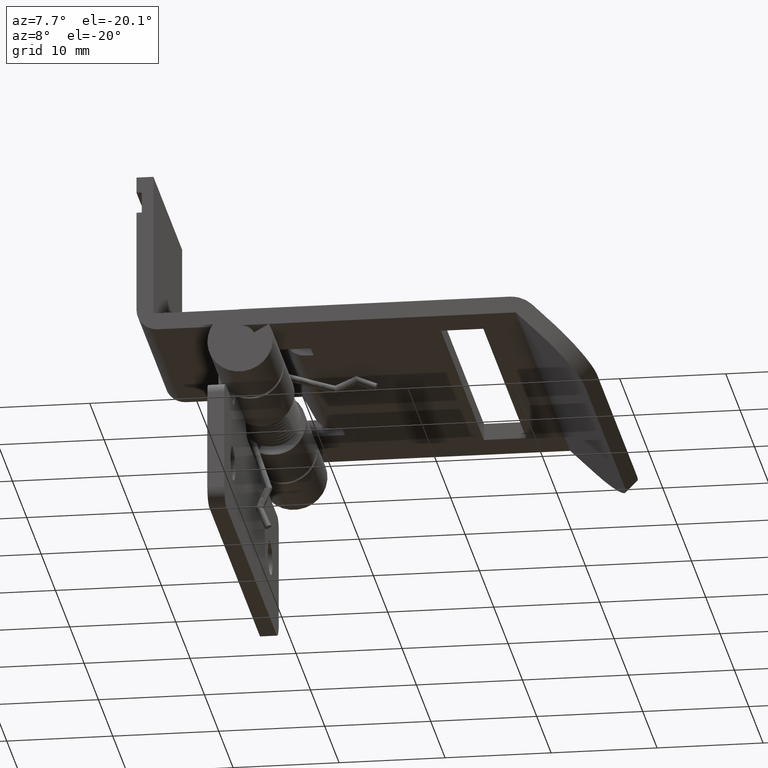
[diagram: clean part render]
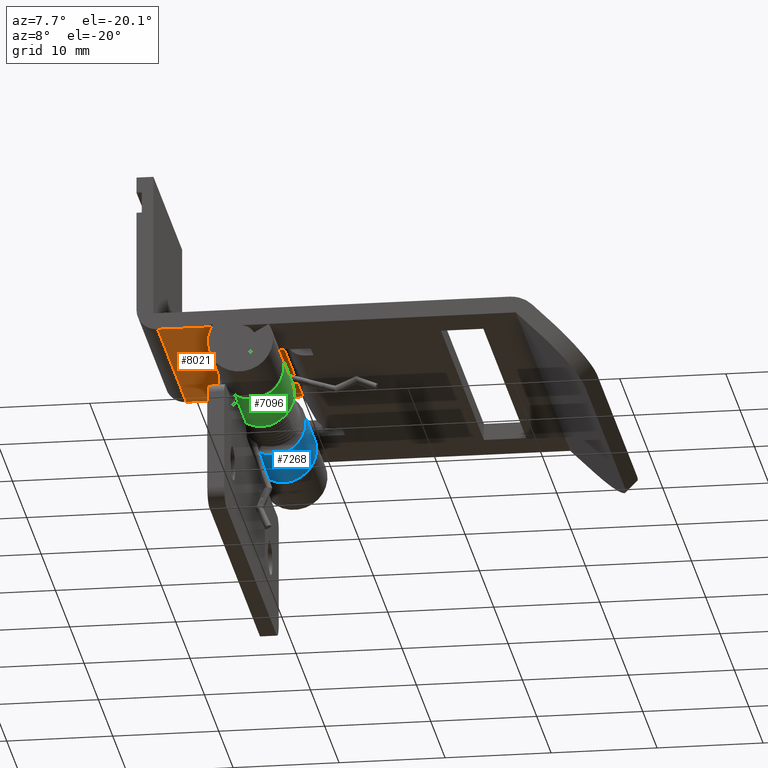
[diagram: same view with three faces highlighted in distinct colors, each labeled with its STEP entity id]
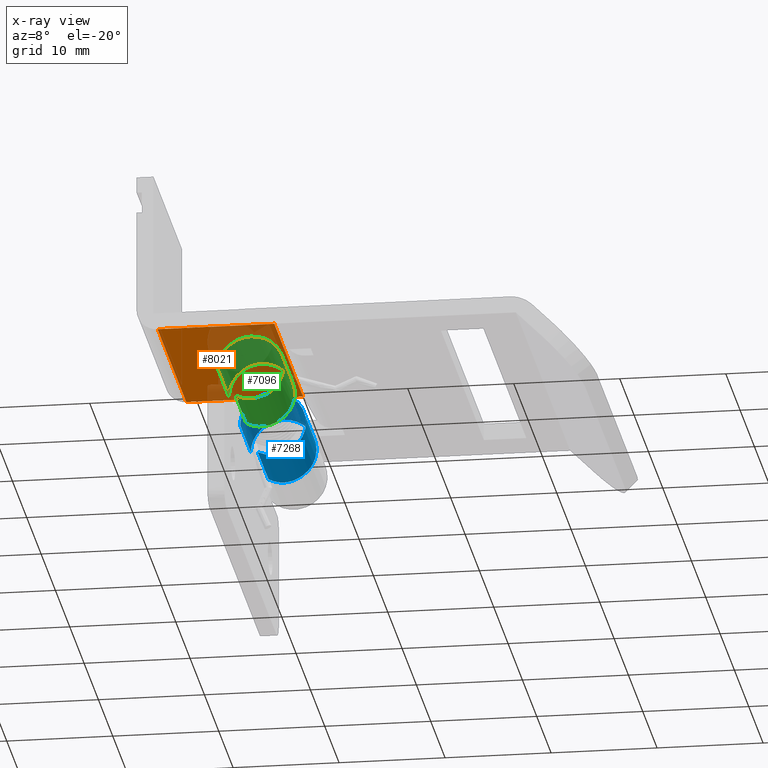
[diagram: x-ray of the same camera — body ghosted, the three highlighted faces saturated]
A machine part, auxiliary view with three faces highlighted in distinct colors.
The next image is the same camera in x-ray (body ghosted, the three faces saturated) — at least one of them is partly hidden behind the body in this view.
Their STEP definitions:

[orange] entity #8021 — the highlighted face is a freeform B-spline surface patch.
#7612=CARTESIAN_POINT('',(2.000382000000000,-10.0,4.800004000000000));
#7613=VERTEX_POINT('',#7612);
#7719=CARTESIAN_POINT('',(-8.999999965093419,-10.0,4.800004000000000));
#7720=VERTEX_POINT('',#7719);
#7736=CARTESIAN_POINT('',(-8.999999965093419,-10.0,4.800004000000000));
#7737=CARTESIAN_POINT('',(2.000382000000000,-10.0,4.800004000000000));
#7738=QUASI_UNIFORM_CURVE('',1,(#7736,#7737),.UNSPECIFIED.,.F.,.U.);
#7739=EDGE_CURVE('',#7720,#7613,#7738,.T.);
#7757=CARTESIAN_POINT('',(2.000382000000000,10.0,4.800004000000000));
#7758=VERTEX_POINT('',#7757);
#7764=CARTESIAN_POINT('',(-8.999999965093419,10.0,4.800004000000000));
#7765=VERTEX_POINT('',#7764);
#7766=CARTESIAN_POINT('',(-8.999999965093419,10.0,4.800004000000000));
#7767=CARTESIAN_POINT('',(2.000382000000000,10.0,4.800004000000000));
#7768=QUASI_UNIFORM_CURVE('',1,(#7766,#7767),.UNSPECIFIED.,.F.,.U.);
#7769=EDGE_CURVE('',#7765,#7758,#7768,.T.);
#7998=CARTESIAN_POINT('',(2.000382000000000,10.0,4.800004000000000));
#7999=CARTESIAN_POINT('',(2.000382000000000,-10.0,4.800004000000000));
#8000=QUASI_UNIFORM_CURVE('',1,(#7998,#7999),.UNSPECIFIED.,.F.,.U.);
#8001=EDGE_CURVE('',#7758,#7613,#8000,.T.);
#8006=CARTESIAN_POINT('',(2.549851057835541,-10.998999961236120,4.800004000000000));
#8007=CARTESIAN_POINT('',(-9.549469317982197,-10.998999961236120,4.800004000000000));
#8008=CARTESIAN_POINT('',(2.549851057835541,10.999000497677921,4.800004000000000));
#8009=CARTESIAN_POINT('',(-9.549469317982197,10.999000497677921,4.800004000000000));
#8010=B_SPLINE_SURFACE_WITH_KNOTS('',1,1,((#8006,#8008),(#8007,#8009)),.UNSPECIFIED.,.F.,.F.,.U.,(2,2),(2,2),(0.0,12.099320375817740),(0.0,21.998000458914039),.UNSPECIFIED.);
#8011=ORIENTED_EDGE('',*,*,#7739,.F.);
#8012=CARTESIAN_POINT('',(-8.999999965093419,10.0,4.800004000000000));
#8013=CARTESIAN_POINT('',(-8.999999965093419,-10.0,4.800004000000000));
#8014=QUASI_UNIFORM_CURVE('',1,(#8012,#8013),.UNSPECIFIED.,.F.,.U.);
#8015=EDGE_CURVE('',#7765,#7720,#8014,.T.);
#8016=ORIENTED_EDGE('',*,*,#8015,.F.);
#8017=ORIENTED_EDGE('',*,*,#7769,.T.);
#8018=ORIENTED_EDGE('',*,*,#8001,.T.);
#8019=EDGE_LOOP('',(#8011,#8016,#8017,#8018));
#8020=FACE_OUTER_BOUND('',#8019,.T.);
#8021=ADVANCED_FACE('',(#8020),#8010,.T.);

[blue] entity #7268 — the highlighted face is a freeform B-spline surface patch.
#5881=CARTESIAN_POINT('',(-1.452424263571842,3.980885261083645,-2.738702416210515));
#5882=VERTEX_POINT('',#5881);
#5883=CARTESIAN_POINT('',(1.833038247998800,4.0,-2.499999764380550));
#5884=VERTEX_POINT('',#5883);
#5885=CARTESIAN_POINT('',(-1.452424263571842,3.980885261083645,-2.738702416210515));
#5886=CARTESIAN_POINT('',(-1.323508086185470,3.969865017760054,-2.807070873349324));
#5887=CARTESIAN_POINT('',(-1.191582152785270,3.955693140812825,-2.865448195245419));
#5888=CARTESIAN_POINT('',(-0.921487070807254,3.927546590670929,-2.963363394196656));
#5889=CARTESIAN_POINT('',(-0.783317970228894,3.913549917411709,-3.002895257463015));
#5890=CARTESIAN_POINT('',(-0.570956094603653,3.896473618098266,-3.047830435631229));
#5891=CARTESIAN_POINT('',(-0.499065714444551,3.891412319923849,-3.060436942593606));
#5892=CARTESIAN_POINT('',(-0.354648134963003,3.883156353013619,-3.080513835991531));
#5893=CARTESIAN_POINT('',(-0.282494087150358,3.879978755377942,-3.087951650832421));
#5894=CARTESIAN_POINT('',(-0.066195018713844,3.873647781703114,-3.102665585433724));
#5895=CARTESIAN_POINT('',(0.077786987210541,3.873778113968319,-3.102378113373354));
#5896=CARTESIAN_POINT('',(0.293436840445546,3.880416188899351,-3.086926375192825));
#5897=CARTESIAN_POINT('',(0.365266250319616,3.883682051494089,-3.079263336782807));
#5898=CARTESIAN_POINT('',(0.508817524512710,3.892063553192834,-3.058821167136485));
#5899=CARTESIAN_POINT('',(0.580830857823335,3.897205000008173,-3.045971805467888));
#5900=CARTESIAN_POINT('',(0.794001569455287,3.914548812561249,-3.000119740198659));
#5901=CARTESIAN_POINT('',(0.932437358494705,3.928671372290487,-2.959947652269663));
#5902=CARTESIAN_POINT('',(1.202608361771241,3.956859970083573,-2.860850052513290));
#5903=CARTESIAN_POINT('',(1.334342962015449,3.970947930887822,-2.801928660983762));
#5904=CARTESIAN_POINT('',(1.527119694891843,3.987182273388437,-2.698748757596049));
#5905=CARTESIAN_POINT('',(1.590251196189735,3.991731743156326,-2.662037662052547));
#5906=CARTESIAN_POINT('',(1.713643038598969,3.998134818219994,-2.584331867645701));
#5907=CARTESIAN_POINT('',(1.774006426989530,4.000000006798879,-2.543282771047470));
#5908=CARTESIAN_POINT('',(1.833038247998800,4.0,-2.499999764380550));
#5909=B_SPLINE_CURVE_WITH_KNOTS('',3,(#5885,#5886,#5887,#5888,#5889,#5890,#5891,#5892,#5893,#5894,#5895,#5896,#5897,#5898,#5899,#5900,#5901,#5902,#5903,#5904,#5905,#5906,#5907,#5908),.UNSPECIFIED.,.F.,.U.,(4,2,2,2,2,2,2,2,2,2,2,4),(0.0,0.125000000000000,0.250000000000000,0.312500000000000,0.375000000000000,0.500000000000000,0.562500000000000,0.625000000000000,0.750000000000000,0.875000000000000,0.937500000000000,1.0),.UNSPECIFIED.);
#5910=EDGE_CURVE('',#5882,#5884,#5909,.T.);
#6016=CARTESIAN_POINT('',(-3.100005999999895,4.0,0.000001831901504));
#6017=VERTEX_POINT('',#6016);
#6018=CARTESIAN_POINT('',(1.833038247998800,4.0,-2.499999764380550));
#6019=CARTESIAN_POINT('',(3.854498102768994,4.000000000000000,-1.017835418526496));
#6020=CARTESIAN_POINT('',(2.828325186497078,4.0,1.269101449530536));
#6021=CARTESIAN_POINT('',(1.802152270225161,4.000000000000000,3.556038317587568));
#6022=CARTESIAN_POINT('',(-0.648926864887637,4.0,3.031326810201635));
#6023=CARTESIAN_POINT('',(-3.100006000000436,4.000000000000000,2.506615302815701));
#6024=CARTESIAN_POINT('',(-3.100005999999895,4.0,0.000001831901504));
#6032=(BOUNDED_CURVE()B_SPLINE_CURVE(2,(#6018,#6019,#6020,#6021,#6022,#6023,#6024),.UNSPECIFIED.,.F.,.U.)B_SPLINE_CURVE_WITH_KNOTS((3,2,2,3),(0.0,0.333333333333333,0.666666666666667,1.0),.UNSPECIFIED.)CURVE()GEOMETRIC_REPRESENTATION_ITEM()RATIONAL_B_SPLINE_CURVE((1.0,0.777602353899947,1.0,0.777602353899947,1.0,0.777602353899947,1.0))REPRESENTATION_ITEM(''));
#6033=EDGE_CURVE('',#5884,#6017,#6032,.T.);
#6477=CARTESIAN_POINT('',(1.833037926647575,11.400001999999960,-2.500000000000000));
#6478=VERTEX_POINT('',#6477);
#6479=CARTESIAN_POINT('',(-1.452424263571842,11.419116738916260,-2.738702416210515));
#6480=VERTEX_POINT('',#6479);
#6481=CARTESIAN_POINT('',(1.833037926647575,11.400001999999960,-2.500000000000000));
#6482=CARTESIAN_POINT('',(1.714879738275285,11.400001999999960,-2.586635312769204));
#6483=CARTESIAN_POINT('',(1.592348386267686,11.407367921044910,-2.663680268019367));
#6484=CARTESIAN_POINT('',(1.338544330604485,11.428659780172881,-2.799832946740748));
#6485=CARTESIAN_POINT('',(1.207272818588075,11.442650292053580,-2.858933230642906));
#6486=CARTESIAN_POINT('',(1.003392304990018,11.463929888833150,-2.934020342504017));
#6487=CARTESIAN_POINT('',(0.934088047546289,11.471095148435831,-2.956813681602687));
#6488=CARTESIAN_POINT('',(0.795039927569749,11.484639687603149,-2.997195187821717));
#6489=CARTESIAN_POINT('',(0.725088995664262,11.491041272386321,-3.014872773820613));
#6490=CARTESIAN_POINT('',(0.513925608322558,11.508276827787840,-3.060498229924645));
#6491=CARTESIAN_POINT('',(0.371405041833473,11.517077096996699,-3.081078158795031));
#6492=CARTESIAN_POINT('',(0.154832821525667,11.523903608545440,-3.096981151737634));
#6493=CARTESIAN_POINT('',(0.082176195364206,11.525132323903820,-3.099777815407826));
#6494=CARTESIAN_POINT('',(-0.064104951345756,11.525318403311140,-3.100204184506215));
#6495=CARTESIAN_POINT('',(-0.136931349976710,11.524271957206290,-3.097825363683437));
#6496=CARTESIAN_POINT('',(-0.353730635963261,11.517961574907700,-3.083161665273361));
#6497=CARTESIAN_POINT('',(-0.496370264342134,11.509464863065579,-3.063390544431493));
#6498=CARTESIAN_POINT('',(-0.707671267884481,11.492564025819080,-3.019007666148261));
#6499=CARTESIAN_POINT('',(-0.777661232333774,11.486254038297981,-3.001749139555761));
#6500=CARTESIAN_POINT('',(-0.916774907531749,11.472842843276631,-2.962225312636815));
#6501=CARTESIAN_POINT('',(-0.986093971158208,11.465720787376510,-2.939884540613980));
#6502=CARTESIAN_POINT('',(-1.191010381353062,11.444372255557630,-2.865767782777792));
#6503=CARTESIAN_POINT('',(-1.323609490997961,11.430128313772240,-2.807017095067054));
#6504=CARTESIAN_POINT('',(-1.452424263571842,11.419116738916260,-2.738702416210515));
#6505=B_SPLINE_CURVE_WITH_KNOTS('',3,(#6481,#6482,#6483,#6484,#6485,#6486,#6487,#6488,#6489,#6490,#6491,#6492,#6493,#6494,#6495,#6496,#6497,#6498,#6499,#6500,#6501,#6502,#6503,#6504),.UNSPECIFIED.,.F.,.U.,(4,2,2,2,2,2,2,2,2,2,2,4),(0.0,0.125000000000000,0.250000000000000,0.312500000000000,0.375000000000000,0.500000000000000,0.562500000000000,0.625000000000000,0.750000000000000,0.812500000000000,0.875000000000000,1.0),.UNSPECIFIED.);
#6506=EDGE_CURVE('',#6478,#6480,#6505,.T.);
#6607=CARTESIAN_POINT('',(-3.100005999999895,11.400001999999960,0.000001831901504));
#6608=VERTEX_POINT('',#6607);
#6614=CARTESIAN_POINT('',(-0.010215562276716,11.400002000000020,3.099990999999790));
#6615=VERTEX_POINT('',#6614);
#6616=CARTESIAN_POINT('',(-0.010215562276715,11.400002000000020,3.099990999999787));
#6617=CARTESIAN_POINT('',(-3.100006000000435,11.400002000000018,3.089809046151786));
#6618=CARTESIAN_POINT('',(-3.100005999999895,11.400001999999960,0.000001831901504));
#6626=(BOUNDED_CURVE()B_SPLINE_CURVE(2,(#6616,#6617,#6618),.UNSPECIFIED.,.F.,.U.)CURVE()GEOMETRIC_REPRESENTATION_ITEM()QUASI_UNIFORM_CURVE()RATIONAL_B_SPLINE_CURVE((1.0,0.708270900253522,1.0))REPRESENTATION_ITEM(''));
#6627=EDGE_CURVE('',#6615,#6608,#6626,.T.);
#6629=CARTESIAN_POINT('',(0.010215562276917,11.400002000000020,3.099990999999790));
#6630=VERTEX_POINT('',#6629);
#6631=CARTESIAN_POINT('',(0.010215562276908,11.400002000000020,3.099990999999787));
#6632=CARTESIAN_POINT('',(0.006810374850668,11.400038495805230,3.099999415950914));
#6633=CARTESIAN_POINT('',(-1.811965E-012,11.400111487415650,3.100016247853167));
#6634=CARTESIAN_POINT('',(-0.006810374854292,11.400038495805230,3.099999415950906));
#6635=CARTESIAN_POINT('',(-0.010215562276716,11.400002000000020,3.099990999999790));
#6636=B_SPLINE_CURVE_WITH_KNOTS('',3,(#6631,#6632,#6633,#6634,#6635),.UNSPECIFIED.,.F.,.U.,(4,1,4),(0.0,0.500000000000067,1.000000000000000),.UNSPECIFIED.);
#6637=EDGE_CURVE('',#6630,#6615,#6636,.T.);
#6639=CARTESIAN_POINT('',(1.833037926647575,11.400001999999960,-2.500000000000000));
#6640=CARTESIAN_POINT('',(3.642102073125281,11.400002000000020,-1.173567695064697));
#6641=CARTESIAN_POINT('',(2.947773847520923,11.400002000000020,0.959515533685697));
#6642=CARTESIAN_POINT('',(2.253445621916565,11.400002000000020,3.092598762436089));
#6643=CARTESIAN_POINT('',(0.010215562276917,11.400002000000020,3.099990999999787));
#6651=(BOUNDED_CURVE()B_SPLINE_CURVE(2,(#6639,#6640,#6641,#6642,#6643),.UNSPECIFIED.,.F.,.U.)B_SPLINE_CURVE_WITH_KNOTS((3,2,3),(0.0,0.500000000000000,1.0),.UNSPECIFIED.)CURVE()GEOMETRIC_REPRESENTATION_ITEM()RATIONAL_B_SPLINE_CURVE((1.0,0.810139426690261,1.0,0.810139426690261,1.0))REPRESENTATION_ITEM(''));
#6652=EDGE_CURVE('',#6478,#6630,#6651,.T.);
#7104=CARTESIAN_POINT('',(-3.100005999999895,11.400001999999960,0.000001831901504));
#7105=CARTESIAN_POINT('',(-3.100005999999895,4.0,0.000001831901504));
#7106=QUASI_UNIFORM_CURVE('',1,(#7104,#7105),.UNSPECIFIED.,.F.,.U.);
#7107=EDGE_CURVE('',#6608,#6017,#7106,.T.);
#7228=CARTESIAN_POINT('',(-1.452424263571842,11.419116738916260,-2.738702416210515));
#7229=CARTESIAN_POINT('',(-1.452424263571842,3.980885261083645,-2.738702416210515));
#7230=QUASI_UNIFORM_CURVE('',1,(#7228,#7229),.UNSPECIFIED.,.F.,.U.);
#7231=EDGE_CURVE('',#6480,#5882,#7230,.T.);
#7236=CARTESIAN_POINT('',(-3.098943705368611,11.716299596806730,-0.081146864914611));
#7237=CARTESIAN_POINT('',(-3.098943705368611,3.678939345337079,-0.081146864914611));
#7238=CARTESIAN_POINT('',(-3.196803569136391,11.716299596806733,3.655970559393460));
#7239=CARTESIAN_POINT('',(-3.196803569136391,3.678939345337079,3.655970559393460));
#7240=CARTESIAN_POINT('',(0.493852246850709,11.716299596806730,3.060418005940570));
#7241=CARTESIAN_POINT('',(0.493852246850709,3.678939345337079,3.060418005940570));
#7242=CARTESIAN_POINT('',(4.184508062837808,11.716299596806733,2.464865452487679));
#7243=CARTESIAN_POINT('',(4.184508062837808,3.678939345337079,2.464865452487679));
#7244=CARTESIAN_POINT('',(2.916124618116266,11.716299596806730,-1.051784463719502));
#7245=CARTESIAN_POINT('',(2.916124618116266,3.678939345337079,-1.051784463719502));
#7246=CARTESIAN_POINT('',(1.647741173394725,11.716299596806733,-4.568434379926682));
#7247=CARTESIAN_POINT('',(1.647741173394725,3.678939345337079,-4.568434379926682));
#7248=CARTESIAN_POINT('',(-1.573371970408527,11.716299596806730,-2.671053735242652));
#7249=CARTESIAN_POINT('',(-1.573371970408527,3.678939345337079,-2.671053735242652));
#7257=(BOUNDED_SURFACE()B_SPLINE_SURFACE(1,2,((#7236,#7238,#7240,#7242,#7244,#7246,#7248),(#7237,#7239,#7241,#7243,#7245,#7247,#7249)),.UNSPECIFIED.,.F.,.F.,.U.)B_SPLINE_SURFACE_WITH_KNOTS((2,2),(3,2,2,3),(0.0,8.037360251469654),(0.0,5.826199339059780,11.652398678119560,17.478598017179340),.UNSPECIFIED.)GEOMETRIC_REPRESENTATION_ITEM()RATIONAL_B_SPLINE_SURFACE(((1.0,0.638320090924328,1.0,0.638320090924328,1.0,0.638320090924328,1.0),(1.0,0.638320090924328,1.0,0.638320090924328,1.0,0.638320090924328,1.0)))REPRESENTATION_ITEM('')SURFACE());
#7258=ORIENTED_EDGE('',*,*,#7107,.T.);
#7259=ORIENTED_EDGE('',*,*,#6033,.F.);
#7260=ORIENTED_EDGE('',*,*,#5910,.F.);
#7261=ORIENTED_EDGE('',*,*,#7231,.F.);
#7262=ORIENTED_EDGE('',*,*,#6506,.F.);
#7263=ORIENTED_EDGE('',*,*,#6652,.T.);
#7264=ORIENTED_EDGE('',*,*,#6637,.T.);
#7265=ORIENTED_EDGE('',*,*,#6627,.T.);
#7266=EDGE_LOOP('',(#7258,#7259,#7260,#7261,#7262,#7263,#7264,#7265));
#7267=FACE_OUTER_BOUND('',#7266,.T.);
#7268=ADVANCED_FACE('',(#7267),#7257,.T.);

[green] entity #7096 — the highlighted face is a freeform B-spline surface patch.
#5813=CARTESIAN_POINT('',(1.833034332300800,-4.0,-2.500002635423755));
#5814=VERTEX_POINT('',#5813);
#5815=CARTESIAN_POINT('',(-1.452424263571842,-3.980885651868495,-2.738702416210515));
#5816=VERTEX_POINT('',#5815);
#5817=CARTESIAN_POINT('',(1.833034332300800,-4.0,-2.500002635423755));
#5818=CARTESIAN_POINT('',(1.714876175051576,-4.000000000002346,-2.586637664164622));
#5819=CARTESIAN_POINT('',(1.592344877451368,-3.992634114367641,-2.663682355591306));
#5820=CARTESIAN_POINT('',(1.338540976568010,-3.971342368894788,-2.799834540726931));
#5821=CARTESIAN_POINT('',(1.207269564904300,-3.957351935742822,-2.858934594918036));
#5822=CARTESIAN_POINT('',(1.003389239784778,-3.936072472181920,-2.934021388396646));
#5823=CARTESIAN_POINT('',(0.934085045127313,-3.928907258894673,-2.956814627982423));
#5824=CARTESIAN_POINT('',(0.795037051046642,-3.915362811735934,-2.997195948765306));
#5825=CARTESIAN_POINT('',(0.725086187397868,-3.908961273285256,-3.014873447078254));
#5826=CARTESIAN_POINT('',(0.513923021589156,-3.891725852675925,-3.060498655861246));
#5827=CARTESIAN_POINT('',(0.371402625075957,-3.882925667739059,-3.081078440557535));
#5828=CARTESIAN_POINT('',(0.154830697766136,-3.876099252159469,-3.096981255535550));
#5829=CARTESIAN_POINT('',(0.082174175625988,-3.874870563703547,-3.099777866332394));
#5830=CARTESIAN_POINT('',(-0.064106749380500,-3.874684524471733,-3.100204144708224));
#5831=CARTESIAN_POINT('',(-0.136933090406256,-3.875730984381782,-3.097825284773597));
#5832=CARTESIAN_POINT('',(-0.353732115313567,-3.882041387671150,-3.083161487596993));
#5833=CARTESIAN_POINT('',(-0.496371556760199,-3.890538085641234,-3.063390326008044));
#5834=CARTESIAN_POINT('',(-0.707672262841722,-3.907438859521775,-3.019007430639672));
#5835=CARTESIAN_POINT('',(-0.777662125281263,-3.913748818932398,-3.001748905728216));
#5836=CARTESIAN_POINT('',(-0.916775590993984,-3.927159944796621,-2.962225098587641));
#5837=CARTESIAN_POINT('',(-0.986094545981428,-3.934281959395314,-2.939884345730245));
#5838=CARTESIAN_POINT('',(-1.191010706518931,-3.955630360421958,-2.865767639116361));
#5839=CARTESIAN_POINT('',(-1.323609652727990,-3.969874195721899,-2.807017009296339));
#5840=CARTESIAN_POINT('',(-1.452424263571842,-3.980885651868495,-2.738702416210515));
#5841=B_SPLINE_CURVE_WITH_KNOTS('',3,(#5817,#5818,#5819,#5820,#5821,#5822,#5823,#5824,#5825,#5826,#5827,#5828,#5829,#5830,#5831,#5832,#5833,#5834,#5835,#5836,#5837,#5838,#5839,#5840),.UNSPECIFIED.,.F.,.U.,(4,2,2,2,2,2,2,2,2,2,2,4),(0.0,0.125000000000000,0.250000000000001,0.312500000000000,0.375000000000000,0.500000000000000,0.562500000000000,0.625000000000000,0.750000000000000,0.812500000000000,0.875000000000000,1.0),.UNSPECIFIED.);
#5842=EDGE_CURVE('',#5814,#5816,#5841,.T.);
#5942=CARTESIAN_POINT('',(-3.100005999999895,-4.0,0.000001831901504));
#5943=VERTEX_POINT('',#5942);
#5949=CARTESIAN_POINT('',(-3.100005999999895,-4.0,0.000001831901504));
#5950=CARTESIAN_POINT('',(-3.100006000000435,-4.000000000000001,2.506616641150898));
#5951=CARTESIAN_POINT('',(-0.648925282255702,-4.0,3.031327149001031));
#5952=CARTESIAN_POINT('',(1.802155435489032,-4.000000000000001,3.556037656851164));
#5953=CARTESIAN_POINT('',(2.828326511670162,-4.0,1.269098496235463));
#5954=CARTESIAN_POINT('',(3.854497587851292,-4.000000000000001,-1.017840664380239));
#5955=CARTESIAN_POINT('',(1.833034332300801,-4.0,-2.500002635423754));
#5963=(BOUNDED_CURVE()B_SPLINE_CURVE(2,(#5949,#5950,#5951,#5952,#5953,#5954,#5955),.UNSPECIFIED.,.F.,.U.)B_SPLINE_CURVE_WITH_KNOTS((3,2,2,3),(0.0,0.333333333333333,0.666666666666667,1.0),.UNSPECIFIED.)CURVE()GEOMETRIC_REPRESENTATION_ITEM()RATIONAL_B_SPLINE_CURVE((1.0,0.777602189765446,1.0,0.777602189765446,1.0,0.777602189765446,1.0))REPRESENTATION_ITEM(''));
#5964=EDGE_CURVE('',#5943,#5814,#5963,.T.);
#6716=CARTESIAN_POINT('',(-1.452424263571842,-11.419115738916400,-2.738702416210515));
#6717=VERTEX_POINT('',#6716);
#6718=CARTESIAN_POINT('',(1.833038247998805,-11.400001000000060,-2.499999764380545));
#6719=VERTEX_POINT('',#6718);
#6720=CARTESIAN_POINT('',(-1.452424263571842,-11.419115738916400,-2.738702416210515));
#6721=CARTESIAN_POINT('',(-1.323508086185466,-11.430135982239969,-2.807070873349323));
#6722=CARTESIAN_POINT('',(-1.191582152785270,-11.444307859187241,-2.865448195245419));
#6723=CARTESIAN_POINT('',(-0.921487070807255,-11.472454409329130,-2.963363394196656));
#6724=CARTESIAN_POINT('',(-0.783317970228894,-11.486451082588349,-3.002895257463016));
#6725=CARTESIAN_POINT('',(-0.570956094603654,-11.503527381901790,-3.047830435631229));
#6726=CARTESIAN_POINT('',(-0.499065714444548,-11.508588680076210,-3.060436942593606));
#6727=CARTESIAN_POINT('',(-0.354648134962999,-11.516844646986440,-3.080513835991531));
#6728=CARTESIAN_POINT('',(-0.282494087150355,-11.520022244622121,-3.087951650832419));
#6729=CARTESIAN_POINT('',(-0.066195018713841,-11.526353218296951,-3.102665585433723));
#6730=CARTESIAN_POINT('',(0.077786987210544,-11.526222886031739,-3.102378113373355));
#6731=CARTESIAN_POINT('',(0.293436840445549,-11.519584811100710,-3.086926375192826));
#6732=CARTESIAN_POINT('',(0.365266250319620,-11.516318948505971,-3.079263336782807));
#6733=CARTESIAN_POINT('',(0.508817524512714,-11.507937446807221,-3.058821167136485));
#6734=CARTESIAN_POINT('',(0.580830857823342,-11.502795999991889,-3.045971805467886));
#6735=CARTESIAN_POINT('',(0.794001569455294,-11.485452187438810,-3.000119740198656));
#6736=CARTESIAN_POINT('',(0.932437358494712,-11.471329627709570,-2.959947652269660));
#6737=CARTESIAN_POINT('',(1.202608361771248,-11.443141029916490,-2.860850052513289));
#6738=CARTESIAN_POINT('',(1.334342962015458,-11.429053069112239,-2.801928660983759));
#6739=CARTESIAN_POINT('',(1.527119694891850,-11.412818726611620,-2.698748757596043));
#6740=CARTESIAN_POINT('',(1.590251196189741,-11.408269256843729,-2.662037662052544));
#6741=CARTESIAN_POINT('',(1.713643038598976,-11.401866181780070,-2.584331867645698));
#6742=CARTESIAN_POINT('',(1.774006426989531,-11.400000993201189,-2.543282771047471));
#6743=CARTESIAN_POINT('',(1.833038247998805,-11.400001000000060,-2.499999764380545));
#6744=B_SPLINE_CURVE_WITH_KNOTS('',3,(#6720,#6721,#6722,#6723,#6724,#6725,#6726,#6727,#6728,#6729,#6730,#6731,#6732,#6733,#6734,#6735,#6736,#6737,#6738,#6739,#6740,#6741,#6742,#6743),.UNSPECIFIED.,.F.,.U.,(4,2,2,2,2,2,2,2,2,2,2,4),(0.0,0.125000000000000,0.250000000000000,0.312500000000000,0.375000000000000,0.500000000000000,0.562500000000000,0.625000000000000,0.750000000000000,0.875000000000000,0.937500000000000,1.0),.UNSPECIFIED.);
#6745=EDGE_CURVE('',#6717,#6719,#6744,.T.);
#6803=CARTESIAN_POINT('',(-0.010215562275389,-11.400001000000019,3.099990999999790));
#6804=VERTEX_POINT('',#6803);
#6805=CARTESIAN_POINT('',(-3.100005999999895,-11.400001000000040,0.000001831901504));
#6806=VERTEX_POINT('',#6805);
#6807=CARTESIAN_POINT('',(-0.010215562275388,-11.400001000000040,3.099990999999792));
#6808=CARTESIAN_POINT('',(-3.100006000000435,-11.400001000000044,3.089809046153110));
#6809=CARTESIAN_POINT('',(-3.100005999999895,-11.400001000000040,0.000001831901504));
#6817=(BOUNDED_CURVE()B_SPLINE_CURVE(2,(#6807,#6808,#6809),.UNSPECIFIED.,.F.,.U.)CURVE()GEOMETRIC_REPRESENTATION_ITEM()QUASI_UNIFORM_CURVE()RATIONAL_B_SPLINE_CURVE((1.0,0.708270900253371,1.0))REPRESENTATION_ITEM(''));
#6818=EDGE_CURVE('',#6804,#6806,#6817,.T.);
#6868=CARTESIAN_POINT('',(0.010215562275590,-11.400001000000019,3.099990999999790));
#6869=VERTEX_POINT('',#6868);
#6870=CARTESIAN_POINT('',(1.833038247998805,-11.400001000000060,-2.499999764380545));
#6871=CARTESIAN_POINT('',(3.642102101571409,-11.400001000000040,-1.173567316656538));
#6872=CARTESIAN_POINT('',(2.947773785852573,-11.400001000000040,0.959515723140345));
#6873=CARTESIAN_POINT('',(2.253445470133738,-11.400001000000040,3.092598762937227));
#6874=CARTESIAN_POINT('',(0.010215562275590,-11.400001000000040,3.099990999999792));
#6882=(BOUNDED_CURVE()B_SPLINE_CURVE(2,(#6870,#6871,#6872,#6873,#6874),.UNSPECIFIED.,.F.,.U.)B_SPLINE_CURVE_WITH_KNOTS((3,2,3),(0.0,0.500000000000000,1.0),.UNSPECIFIED.)CURVE()GEOMETRIC_REPRESENTATION_ITEM()RATIONAL_B_SPLINE_CURVE((1.0,0.810139445528991,1.0,0.810139445528991,1.0))REPRESENTATION_ITEM(''));
#6883=EDGE_CURVE('',#6719,#6869,#6882,.T.);
#6885=CARTESIAN_POINT('',(0.010215562275591,-11.400001000000049,3.099990999999792));
#6886=CARTESIAN_POINT('',(0.006810374850759,-11.400041336534830,3.099999415950915));
#6887=CARTESIAN_POINT('',(2.267473E-012,-11.400122009604379,3.100016247853158));
#6888=CARTESIAN_POINT('',(-0.006810374846224,-11.400041336534830,3.099999415950926));
#6889=CARTESIAN_POINT('',(-0.010215562275389,-11.400001000000019,3.099990999999790));
#6890=B_SPLINE_CURVE_WITH_KNOTS('',3,(#6885,#6886,#6887,#6888,#6889),.UNSPECIFIED.,.F.,.U.,(4,1,4),(0.0,0.500000000086108,1.000000000000000),.UNSPECIFIED.);
#6891=EDGE_CURVE('',#6869,#6804,#6890,.T.);
#7049=CARTESIAN_POINT('',(-1.452424263571842,-3.980885651868495,-2.738702416210515));
#7050=CARTESIAN_POINT('',(-1.452424263571842,-11.419115738916400,-2.738702416210515));
#7051=QUASI_UNIFORM_CURVE('',1,(#7049,#7050),.UNSPECIFIED.,.F.,.U.);
#7052=EDGE_CURVE('',#5816,#6717,#7051,.T.);
#7060=CARTESIAN_POINT('',(-3.098943705368611,-3.683703345734279,-0.081146864914611));
#7061=CARTESIAN_POINT('',(-3.098943705368611,-11.721061606099459,-0.081146864914611));
#7062=CARTESIAN_POINT('',(-3.196803569136391,-3.683703345734278,3.655970559393460));
#7063=CARTESIAN_POINT('',(-3.196803569136391,-11.721061606099457,3.655970559393460));
#7064=CARTESIAN_POINT('',(0.493852246850709,-3.683703345734279,3.060418005940570));
#7065=CARTESIAN_POINT('',(0.493852246850709,-11.721061606099459,3.060418005940570));
#7066=CARTESIAN_POINT('',(4.184508062837808,-3.683703345734278,2.464865452487679));
#7067=CARTESIAN_POINT('',(4.184508062837808,-11.721061606099457,2.464865452487679));
#7068=CARTESIAN_POINT('',(2.916124618116266,-3.683703345734279,-1.051784463719502));
#7069=CARTESIAN_POINT('',(2.916124618116266,-11.721061606099459,-1.051784463719502));
#7070=CARTESIAN_POINT('',(1.647741173394725,-3.683703345734278,-4.568434379926682));
#7071=CARTESIAN_POINT('',(1.647741173394725,-11.721061606099457,-4.568434379926682));
#7072=CARTESIAN_POINT('',(-1.573371970408527,-3.683703345734279,-2.671053735242652));
#7073=CARTESIAN_POINT('',(-1.573371970408527,-11.721061606099459,-2.671053735242652));
#7081=(BOUNDED_SURFACE()B_SPLINE_SURFACE(1,2,((#7060,#7062,#7064,#7066,#7068,#7070,#7072),(#7061,#7063,#7065,#7067,#7069,#7071,#7073)),.UNSPECIFIED.,.F.,.F.,.U.)B_SPLINE_SURFACE_WITH_KNOTS((2,2),(3,2,2,3),(0.0,8.037358260365178),(0.0,5.826199339059780,11.652398678119560,17.478598017179340),.UNSPECIFIED.)GEOMETRIC_REPRESENTATION_ITEM()RATIONAL_B_SPLINE_SURFACE(((1.0,0.638320090924328,1.0,0.638320090924328,1.0,0.638320090924328,1.0),(1.0,0.638320090924328,1.0,0.638320090924328,1.0,0.638320090924328,1.0)))REPRESENTATION_ITEM('')SURFACE());
#7082=ORIENTED_EDGE('',*,*,#5842,.F.);
#7083=ORIENTED_EDGE('',*,*,#5964,.F.);
#7084=CARTESIAN_POINT('',(-3.100005999999895,-4.0,0.000001831901504));
#7085=CARTESIAN_POINT('',(-3.100005999999895,-11.400001000000040,0.000001831901504));
#7086=QUASI_UNIFORM_CURVE('',1,(#7084,#7085),.UNSPECIFIED.,.F.,.U.);
#7087=EDGE_CURVE('',#5943,#6806,#7086,.T.);
#7088=ORIENTED_EDGE('',*,*,#7087,.T.);
#7089=ORIENTED_EDGE('',*,*,#6818,.F.);
#7090=ORIENTED_EDGE('',*,*,#6891,.F.);
#7091=ORIENTED_EDGE('',*,*,#6883,.F.);
#7092=ORIENTED_EDGE('',*,*,#6745,.F.);
#7093=ORIENTED_EDGE('',*,*,#7052,.F.);
#7094=EDGE_LOOP('',(#7082,#7083,#7088,#7089,#7090,#7091,#7092,#7093));
#7095=FACE_OUTER_BOUND('',#7094,.T.);
#7096=ADVANCED_FACE('',(#7095),#7081,.T.);